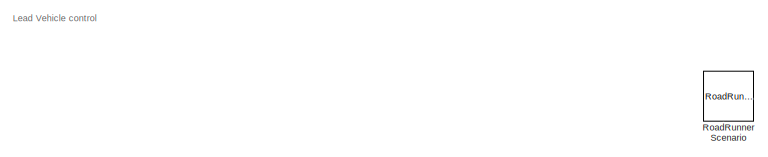
[diagram: root canvas - part 1/2, top left region]
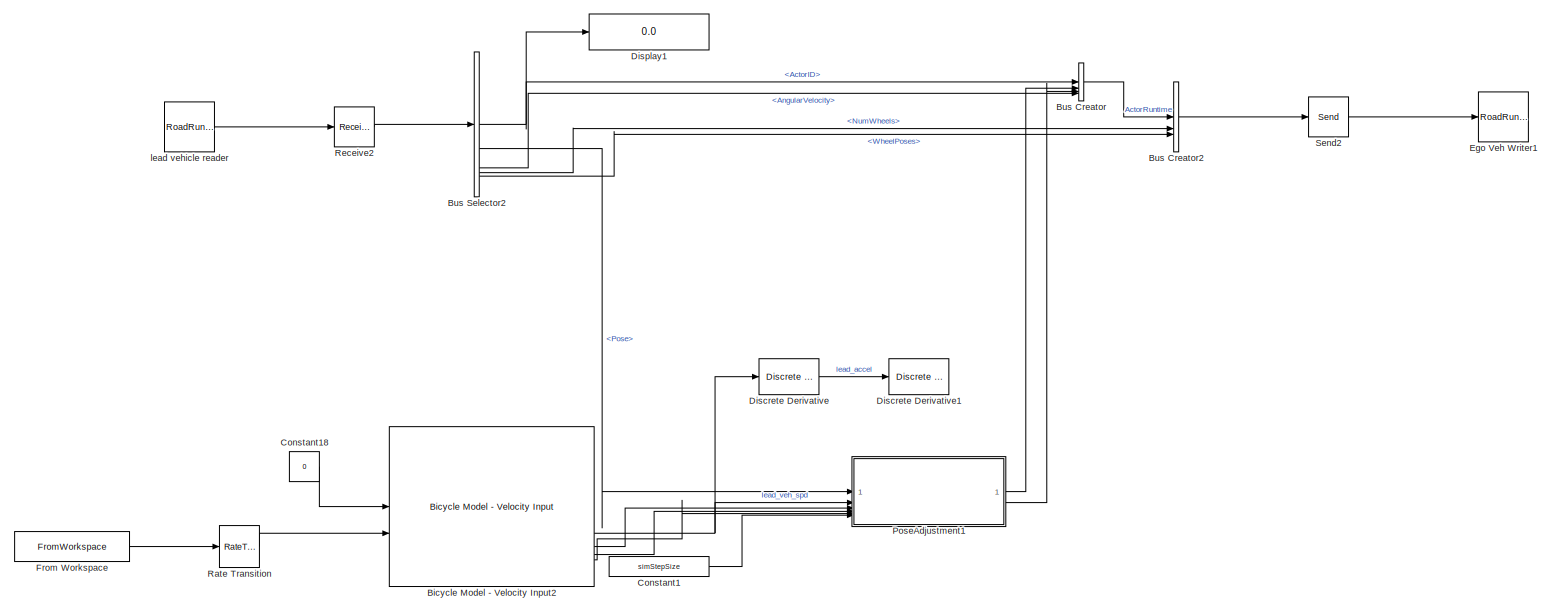
[diagram: root canvas - part 2/2, full width, middle band]
MODEL slx_7a82c8452ec1
KIND model
CONFIG AbsTol = auto
CONFIG EnableMultiTasking = off
CONFIG FixedStep = auto
CONFIG MaxStep = auto
CONFIG MinStep = auto
CONFIG RelTol = 1e-3
CONFIG SampleTimeConstraint = Unconstrained
CONFIG SolverName = VariableStepAuto
CONFIG StartTime = 0
CONFIG StopTime = 1000
BLOCK [Reference] Bicycle Model - Velocity Input2  REF=autolibshared/Bicycle Model - Velocity Input
  LibrarySourceBlock = drivingscenarioandsensors/Bicycle Model - Velocity Input
  SourceBlock = autolibshared/Bicycle Model - Velocity Input
  SourceType = Vehicle Body 3DOF Lateral
BLOCK [BusCreator] Bus Creator
  DisplayOption = bar
  InheritFromInputs = on
  Inputs = 4
  OutDataTypeStr = Bus: BusActorRuntime
BLOCK [BusCreator] Bus Creator2
  DisplayOption = bar
  InheritFromInputs = on
  Inputs = 3
  NonVirtualBus = on
  OutDataTypeStr = Bus: BusVehicleRuntime
BLOCK [BusSelector] Bus Selector2
  OutputSignals = ActorRuntime.ActorID,ActorRuntime.Pose,ActorRuntime.Velocity,ActorRuntime.AngularVelocity,NumWheels,WheelPoses
BLOCK [Constant] Constant1
  Value = simStepSize
BLOCK [Constant] Constant18
  Value = 0
BLOCK [Reference] Discrete Derivative  REF=simulink/Discrete/Discrete Derivative
  SourceBlock = simulink/Discrete/Discrete Derivative
  SourceType = Discrete Derivative
BLOCK [Reference] Discrete Derivative1  REF=simulink/Discrete/Discrete Derivative
  SourceBlock = simulink/Discrete/Discrete Derivative
  SourceType = Discrete Derivative
BLOCK [Display] Display1
  Decimation = 1
BLOCK [Reference] Ego Veh Writer1  REF=roadrunnerscenario/RoadRunner Scenario
Writer
  SourceBlock = roadrunnerscenario/RoadRunner Scenario\nWriter
BLOCK [FromWorkspace] From Workspace
  VariableName = [time drv_trc]
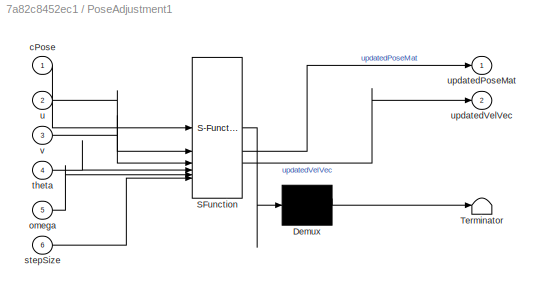
BLOCK [SubSystem] PoseAdjustment1
  ErrorFcn = Stateflow.Translate.translate
  PermitHierarchicalResolution = ExplicitOnly
  SFBlockType = MATLAB Function
  TreatAsAtomicUnit = on
BLOCK [Demux] PoseAdjustment1/ Demux 
  Outputs = 1
BLOCK [S-Function] PoseAdjustment1/ SFunction 
  EnableBusSupport = on
  FunctionName = sf_sfun
  PortCounts = [6 3]
  SFcnIsStateOwnerBlock = off
  SFunctionDeploymentMode = off
  Tag = Stateflow S-Function 6
BLOCK [Terminator] PoseAdjustment1/ Terminator 
BLOCK [Inport] PoseAdjustment1/cPose
BLOCK [Inport] PoseAdjustment1/omega
  Port = 5
BLOCK [Inport] PoseAdjustment1/stepSize
  Port = 6
BLOCK [Inport] PoseAdjustment1/theta
  Port = 4
BLOCK [Inport] PoseAdjustment1/u
  Port = 2
BLOCK [Outport] PoseAdjustment1/updatedPoseMat
BLOCK [Outport] PoseAdjustment1/updatedVelVec
  Port = 2
BLOCK [Inport] PoseAdjustment1/v
  Port = 3
BLOCK [RateTransition] Rate Transition
  OutPortSampleTime = simStepSize
BLOCK [Receive] Receive2
  InputPortMap = u0
  InputPortMessageModes = m
  OutputPortMap = o1
  QueueLength = 1
  QueueOverwriting = on
  QueueType = LIFO
  UseInternalQueue = off
BLOCK [Reference] RoadRunner Scenario  REF=roadrunnerscenario/RoadRunner Scenario
  SourceBlock = roadrunnerscenario/RoadRunner Scenario
BLOCK [Send] Send2
  InputPortMap = u1
  OutputPortMessageModes = m
BLOCK [Reference] lead vehicle reader  REF=roadrunnerscenario/RoadRunner Scenario
Reader
  SourceBlock = roadrunnerscenario/RoadRunner Scenario\nReader
ANNOTATION (root): Lead Vehicle control
NET Bicycle Model - Velocity Input2:2 -> Discrete Derivative:1, PoseAdjustment1:2
LINE Bicycle Model - Velocity Input2:3 -> PoseAdjustment1:3
LINE Bicycle Model - Velocity Input2:4 -> PoseAdjustment1:4
LINE Bicycle Model - Velocity Input2:5 -> PoseAdjustment1:5
LINE Bus Creator2:1 -> Send2:1
LINE Bus Creator:1 -> Bus Creator2:1
NET Bus Selector2:1 -> Bus Creator:1, Display1:1
LINE Bus Selector2:2 -> PoseAdjustment1:1
LINE Bus Selector2:4 -> Bus Creator:4
LINE Bus Selector2:5 -> Bus Creator2:2
LINE Bus Selector2:6 -> Bus Creator2:3
LINE Constant18:1 -> Bicycle Model - Velocity Input2:1
LINE Constant1:1 -> PoseAdjustment1:6
LINE Discrete Derivative:1 -> Discrete Derivative1:1
LINE From Workspace:1 -> Rate Transition:1
LINE PoseAdjustment1:1 -> Bus Creator:2
LINE PoseAdjustment1:2 -> Bus Creator:3
LINE Rate Transition:1 -> Bicycle Model - Velocity Input2:2
LINE Receive2:1 -> Bus Selector2:1
LINE Send2:1 -> Ego Veh Writer1:1
LINE lead vehicle reader:1 -> Receive2:1
note: NET lines group one-source signal fan-out (src -> all destinations, sorted); 1:1 wires keep LINE
CHART PoseAdjustment1 states=1 transitions=1
  STATE_LABEL 'eML_blk_kernel()'
  STATE_LABEL 'SCRIPT:\nfunction [updatedPoseMat, updatedVelVec] = fcn(cPose, u, v, theta, omega, stepSize)\n    thetad = theta + omega*stepSize;\n    xd = (u*cos(theta) - v*sin(theta))*stepSize;\n    yd = (u*sin(theta) + v*cos(theta))*stepSize;\n    pose_mat = [cos(-thetad) -sin(-thetad) 0 (yd+cPose(1,4)); sin(-thetad) cos(-thetad) 0 (xd+cPose(2,4)); 0 0 1 0; 0 0 0 1];\n    updatedPoseMat = pose_mat;\n    updatedVelVe...<+83ch>'
CHART  states=0 transitions=0
